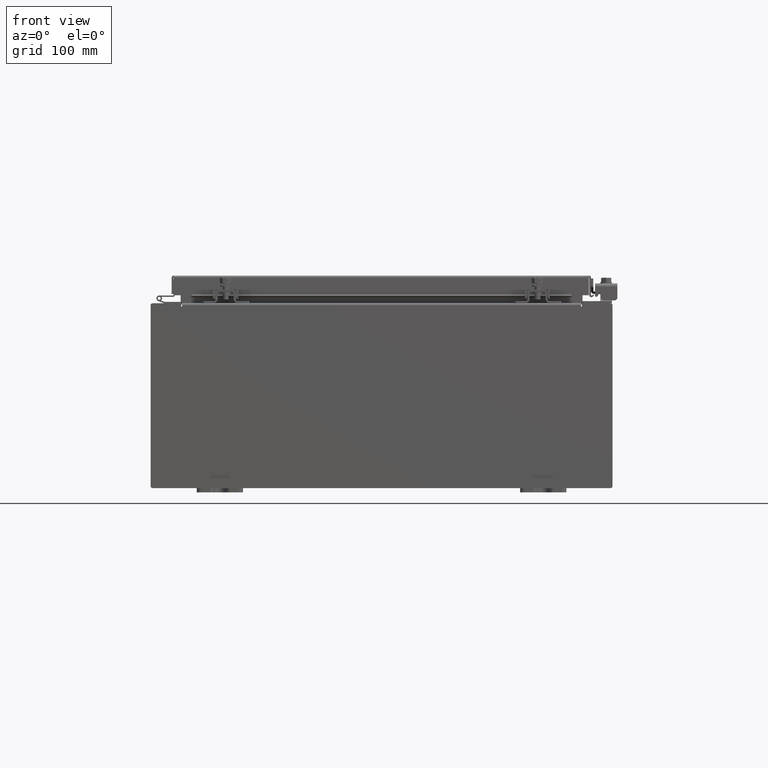
[diagram: clean part render]
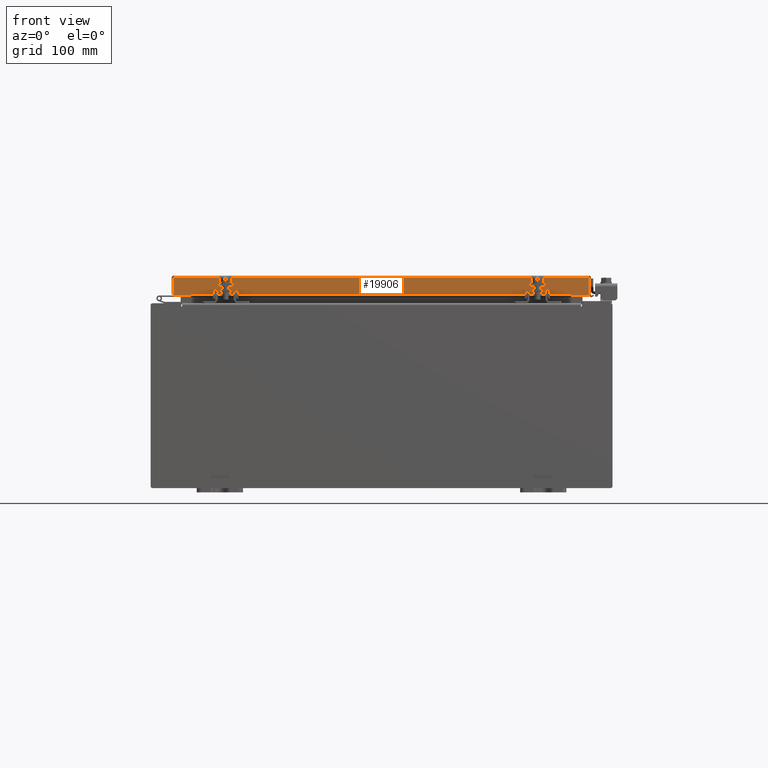
[diagram: same view with one face highlighted and labeled with its STEP entity id]
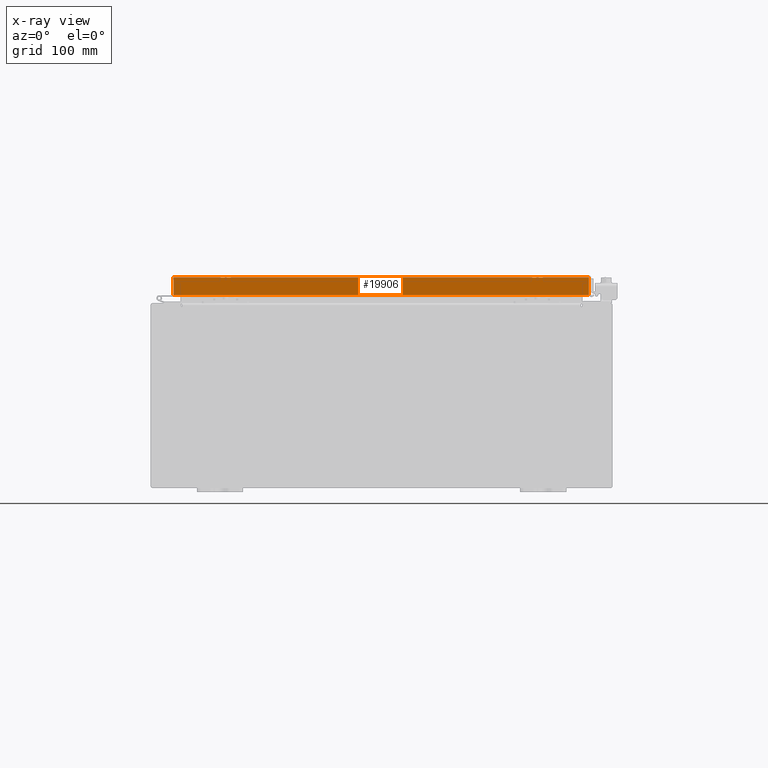
[diagram: x-ray of the same camera — body ghosted, the highlighted face saturated]
A machine part, front view. The second image highlights one B-rep face of the part: STEP entity #19906.
The next image is the same camera in x-ray: the body ghosted, the highlighted face saturated — about 0% of this face is hidden behind the body in this view.
In plain terms, the highlighted planar face has unit normal (-0, 1, -0).
Its self-contained STEP definition (entity closure, byte-faithful):
#1314 = EDGE_CURVE ( 'NONE', #27269, #2136, #24843, .T. ) ;
#1661 = ORIENTED_EDGE ( 'NONE', *, *, #14618, .T. ) ;
#2136 = VERTEX_POINT ( 'NONE', #10465 ) ;
#2773 = DIRECTION ( 'NONE',  ( 0.0000000000000000000, -2.818880942772360100E-015, -1.000000000000000000 ) ) ;
#3104 = CARTESIAN_POINT ( 'NONE',  ( 8.989157864376268800, -9.093999999999999400, -0.07469999999999978000 ) ) ;
#3590 = CARTESIAN_POINT ( 'NONE',  ( -8.989157864376267100, -9.093999999999999400, -0.08770000000000007000 ) ) ;
#3597 = LINE ( 'NONE', #3680, #14965 ) ;
#3680 = CARTESIAN_POINT ( 'NONE',  ( 9.077999999999999400, -9.094000000000001200, -0.8499999999999996400 ) ) ;
#4026 = CARTESIAN_POINT ( 'NONE',  ( 8.239157864376267100, -9.093999999999999400, -0.8500000000000006400 ) ) ;
#4040 = VECTOR ( 'NONE', #2773, 39.37007874015748100 ) ;
#4047 = LINE ( 'NONE', #5646, #18267 ) ;
#4532 = DIRECTION ( 'NONE',  ( 0.0000000000000000000, 2.818880942772360100E-015, 1.000000000000000000 ) ) ;
#5088 = VECTOR ( 'NONE', #15480, 39.37007874015748100 ) ;
#5646 = CARTESIAN_POINT ( 'NONE',  ( 9.077999999999999400, -9.094000000000001200, -0.8499999999999996400 ) ) ;
#5871 = EDGE_CURVE ( 'NONE', #2136, #22460, #4047, .T. ) ;
#5961 = DIRECTION ( 'NONE',  ( -1.000000000000000000, -0.0000000000000000000, 1.203722403024570700E-016 ) ) ;
#6627 = EDGE_CURVE ( 'NONE', #19008, #27537, #22499, .T. ) ;
#6702 = VECTOR ( 'NONE', #16932, 39.37007874015748100 ) ;
#6910 = EDGE_LOOP ( 'NONE', ( #22333, #1661, #23727, #7792, #16632, #10278 ) ) ;
#7792 = ORIENTED_EDGE ( 'NONE', *, *, #1314, .F. ) ;
#7918 = VECTOR ( 'NONE', #14545, 39.37007874015748100 ) ;
#9874 = CARTESIAN_POINT ( 'NONE',  ( 8.989157864376268800, -9.094000000000001200, -0.8499999999999996400 ) ) ;
#10278 = ORIENTED_EDGE ( 'NONE', *, *, #20747, .F. ) ;
#10465 = CARTESIAN_POINT ( 'NONE',  ( -8.239157864376267100, -9.093999999999999400, -0.8500000000000006400 ) ) ;
#11314 = CARTESIAN_POINT ( 'NONE',  ( 3.085730739384078400E-030, -9.093999999999999400, 2.589571694958342600E-014 ) ) ;
#13974 = LINE ( 'NONE', #3104, #7918 ) ;
#14545 = DIRECTION ( 'NONE',  ( -0.0000000000000000000, -2.818880942772360100E-015, -1.000000000000000000 ) ) ;
#14618 = EDGE_CURVE ( 'NONE', #19008, #22460, #22181, .T. ) ;
#14660 = CARTESIAN_POINT ( 'NONE',  ( 8.239157864376268800, -9.093999999999999400, -0.8500000000000006400 ) ) ;
#14965 = VECTOR ( 'NONE', #5961, 39.37007874015748100 ) ;
#15480 = DIRECTION ( 'NONE',  ( 1.000000000000000000, 3.393150142274113600E-031, -9.248938716548949800E-046 ) ) ;
#15863 = PLANE ( 'NONE',  #27129 ) ;
#16410 = CARTESIAN_POINT ( 'NONE',  ( -8.989157864376267100, -9.093999999999999400, 2.589571694958342600E-014 ) ) ;
#16632 = ORIENTED_EDGE ( 'NONE', *, *, #28332, .F. ) ;
#16932 = DIRECTION ( 'NONE',  ( -1.000000000000000000, 0.0000000000000000000, 0.0000000000000000000 ) ) ;
#18123 = DIRECTION ( 'NONE',  ( -3.393150142274112700E-031, 1.000000000000000000, -2.818880942772360100E-015 ) ) ;
#18267 = VECTOR ( 'NONE', #28316, 39.37007874015748100 ) ;
#19008 = VERTEX_POINT ( 'NONE', #3590 ) ;
#19560 = CARTESIAN_POINT ( 'NONE',  ( -8.989157864376267100, -9.094000000000001200, -0.8499999999999975400 ) ) ;
#19906 = ADVANCED_FACE ( 'NONE', ( #22145 ), #15863, .F. ) ;
#20747 = EDGE_CURVE ( 'NONE', #27537, #28162, #13974, .T. ) ;
#20921 = CARTESIAN_POINT ( 'NONE',  ( 8.989157864376268800, -9.093999999999999400, -0.08770000000000007000 ) ) ;
#22145 = FACE_OUTER_BOUND ( 'NONE', #6910, .T. ) ;
#22181 = LINE ( 'NONE', #16410, #4040 ) ;
#22333 = ORIENTED_EDGE ( 'NONE', *, *, #6627, .F. ) ;
#22460 = VERTEX_POINT ( 'NONE', #19560 ) ;
#22499 = LINE ( 'NONE', #29097, #5088 ) ;
#23727 = ORIENTED_EDGE ( 'NONE', *, *, #5871, .F. ) ;
#24843 = LINE ( 'NONE', #14660, #6702 ) ;
#27129 = AXIS2_PLACEMENT_3D ( 'NONE', #11314, #18123, #4532 ) ;
#27269 = VERTEX_POINT ( 'NONE', #4026 ) ;
#27537 = VERTEX_POINT ( 'NONE', #20921 ) ;
#28162 = VERTEX_POINT ( 'NONE', #9874 ) ;
#28316 = DIRECTION ( 'NONE',  ( -1.000000000000000000, -0.0000000000000000000, 1.203722403024570700E-016 ) ) ;
#28332 = EDGE_CURVE ( 'NONE', #28162, #27269, #3597, .T. ) ;
#29097 = CARTESIAN_POINT ( 'NONE',  ( 9.077999999999999400, -9.093999999999999400, -0.08770000000000007000 ) ) ;